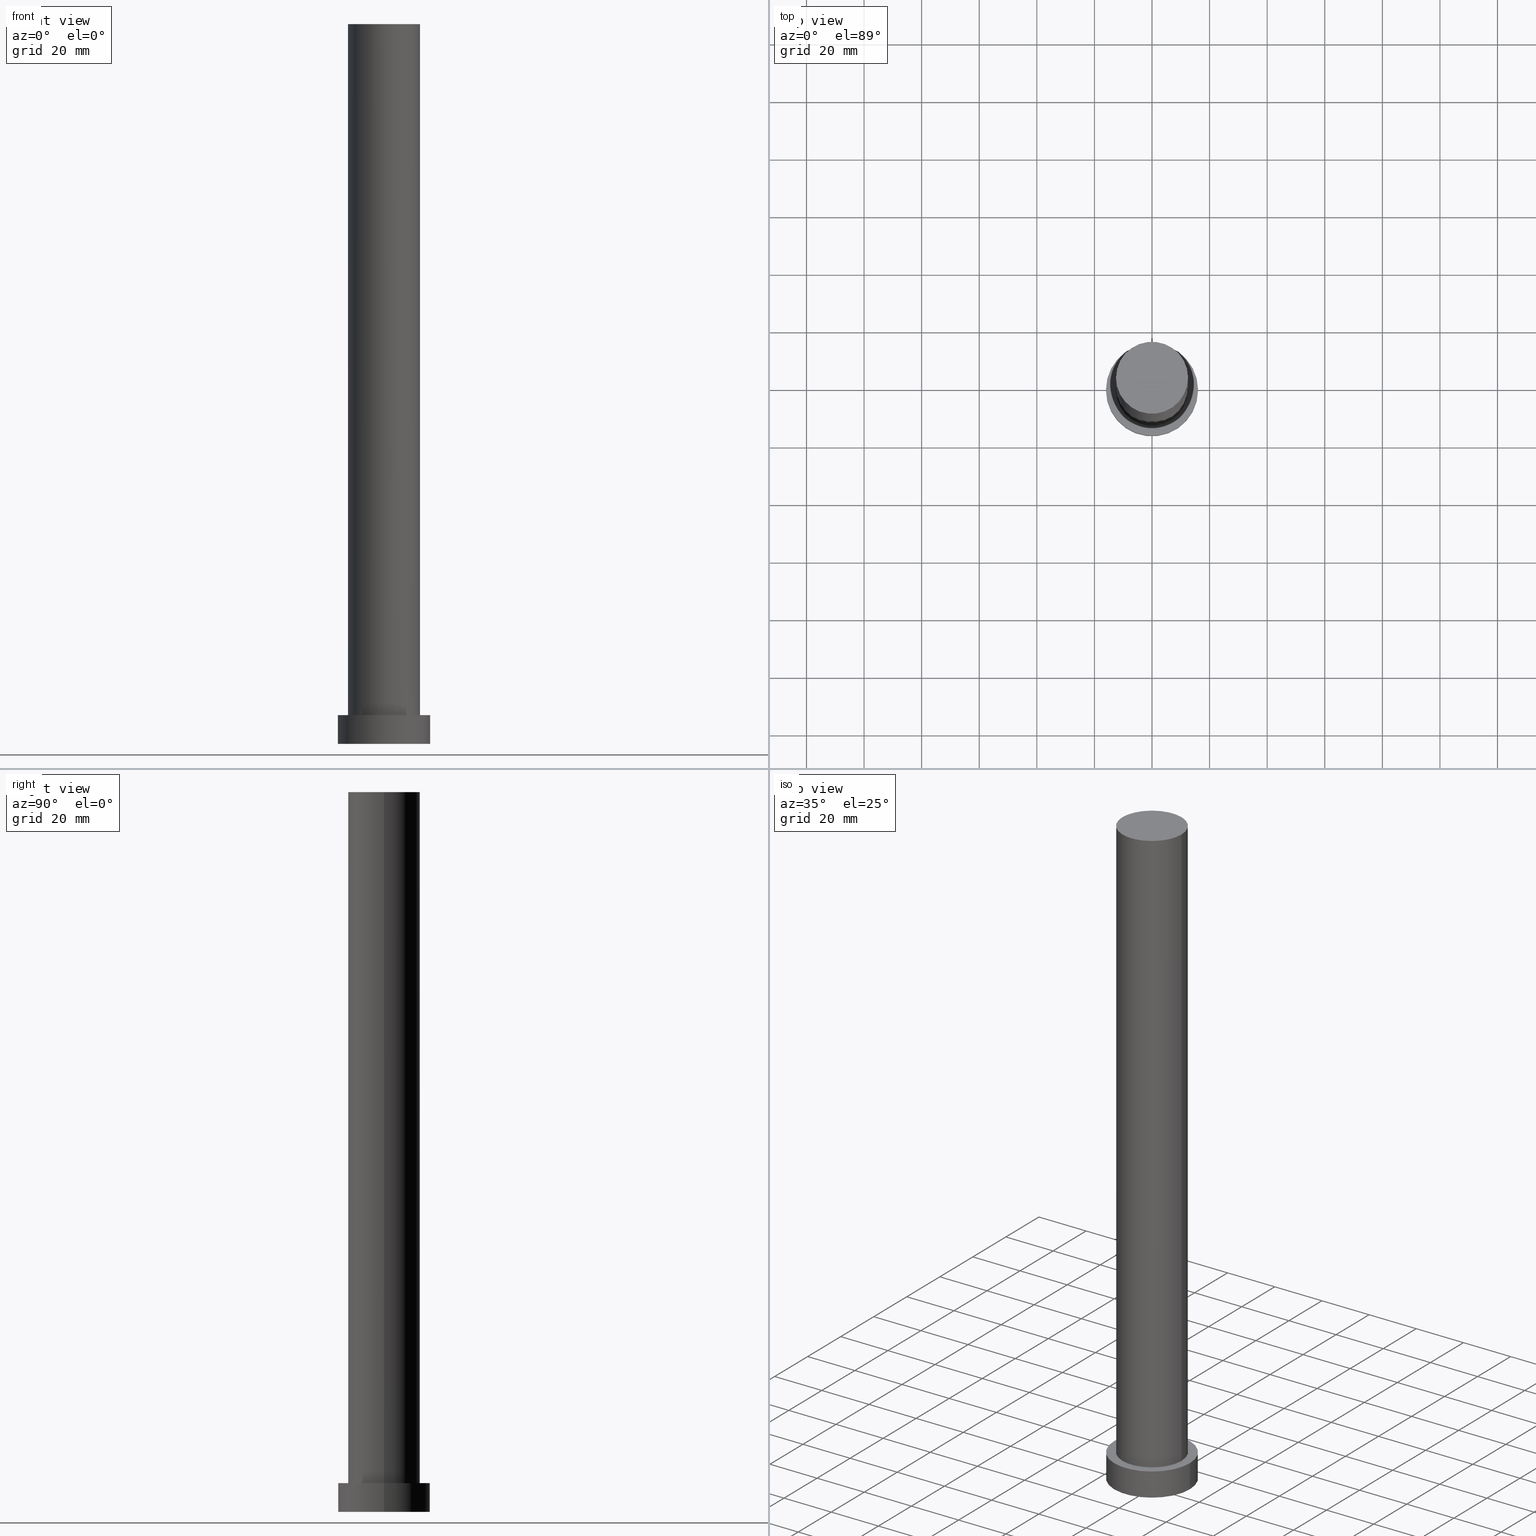
[diagram: canonical four-view strip — front | top / right | iso, engineering-drawing reading convention]
A machine part, canonical four-view strip (front | top / right | iso — engineering-drawing reading convention). The complete STEP part file that produces these views, byte-faithful:
ISO-10303-21;
HEADER;
FILE_DESCRIPTION (( 'STEP AP203' ),
    '1' );
FILE_NAME ('3a8e.STEP',
    '2023-02-13T07:32:16',
    ( '' ),
    ( '' ),
    'SwSTEP 2.0',
    'SolidWorks 2019',
    '' );
FILE_SCHEMA (( 'CONFIG_CONTROL_DESIGN' ));
ENDSEC;

DATA;
#1 = CARTESIAN_POINT ( 'NONE',  ( 0.000000000000000000, 0.000000000000000000, 10.00000000000000000 ) ) ;
#2 = PERSON_AND_ORGANIZATION ( #83, #182 ) ;
#3 = APPROVAL ( #39, 'NEUR�EN�' ) ;
#4 = CARTESIAN_POINT ( 'NONE',  ( 0.000000000000000000, 0.000000000000000000, 10.00000000000000000 ) ) ;
#5 = CARTESIAN_POINT ( 'NONE',  ( 0.000000000000000000, 0.000000000000000000, 10.00000000000000000 ) ) ;
#6 =( NAMED_UNIT ( * ) PLANE_ANGLE_UNIT ( ) SI_UNIT ( $, .RADIAN. ) );
#7 = EDGE_LOOP ( 'NONE', ( #219, #145, #225, #142 ) ) ;
#8 = ORIENTED_EDGE ( 'NONE', *, *, #68, .F. ) ;
#9 = DIRECTION ( 'NONE',  ( 1.000000000000000000, 0.000000000000000000, -0.000000000000000000 ) ) ;
#10 = ORIENTED_EDGE ( 'NONE', *, *, #221, .F. ) ;
#11 = DIRECTION ( 'NONE',  ( -0.000000000000000000, -0.000000000000000000, -1.000000000000000000 ) ) ;
#12 = DIRECTION ( 'NONE',  ( 1.000000000000000000, 0.000000000000000000, 0.000000000000000000 ) ) ;
#13 = CARTESIAN_POINT ( 'NONE',  ( 0.000000000000000000, 0.000000000000000000, 250.0000000000000000 ) ) ;
#14 = SHAPE_DEFINITION_REPRESENTATION ( #32, #188 ) ;
#15 = DIRECTION ( 'NONE',  ( -0.000000000000000000, -0.000000000000000000, -1.000000000000000000 ) ) ;
#16 = VECTOR ( 'NONE', #70, 1000.000000000000000 ) ;
#17 = APPROVAL_ROLE ( '' ) ;
#18 = AXIS2_PLACEMENT_3D ( 'NONE', #243, #25, #155 ) ;
#19 = AXIS2_PLACEMENT_3D ( 'NONE', #184, #11, #249 ) ;
#20 = PLANE ( 'NONE',  #26 ) ;
#21 = DIRECTION ( 'NONE',  ( 1.000000000000000000, 0.000000000000000000, 0.000000000000000000 ) ) ;
#22 = AXIS2_PLACEMENT_3D ( 'NONE', #241, #59, #179 ) ;
#23 = APPLICATION_PROTOCOL_DEFINITION ( 'international standard', 'config_control_design', 1994, #170 ) ;
#24 = EDGE_CURVE ( 'NONE', #33, #47, #69, .T. ) ;
#25 = DIRECTION ( 'NONE',  ( 0.000000000000000000, 0.000000000000000000, 1.000000000000000000 ) ) ;
#26 = AXIS2_PLACEMENT_3D ( 'NONE', #217, #63, #9 ) ;
#27 = DIRECTION ( 'NONE',  ( 0.000000000000000000, 0.000000000000000000, 1.000000000000000000 ) ) ;
#28 = AXIS2_PLACEMENT_3D ( 'NONE', #122, #27, #12 ) ;
#29 = PLANE ( 'NONE',  #169 ) ;
#30 = EDGE_LOOP ( 'NONE', ( #81, #44, #65, #181 ) ) ;
#31 = FACE_OUTER_BOUND ( 'NONE', #125, .T. ) ;
#32 = PRODUCT_DEFINITION_SHAPE ( 'NONE', 'NONE',  #174 ) ;
#33 = VERTEX_POINT ( 'NONE', #64 ) ;
#34 = ADVANCED_FACE ( 'NONE', ( #222 ), #29, .F. ) ;
#35 = CIRCLE ( 'NONE', #107, 16.00000000000000000 ) ;
#36 = DATE_TIME_ROLE ( 'classification_date' ) ;
#37 = DIRECTION ( 'NONE',  ( 1.000000000000000000, 0.000000000000000000, 0.000000000000000000 ) ) ;
#38 = FACE_OUTER_BOUND ( 'NONE', #163, .T. ) ;
#39 = APPROVAL_STATUS ( 'not_yet_approved' ) ;
#40 = EDGE_CURVE ( 'NONE', #177, #47, #43, .T. ) ;
#41 = CARTESIAN_POINT ( 'NONE',  ( 0.000000000000000000, 0.000000000000000000, 10.00000000000000000 ) ) ;
#42 = VERTEX_POINT ( 'NONE', #198 ) ;
#43 = LINE ( 'NONE', #128, #55 ) ;
#44 = ORIENTED_EDGE ( 'NONE', *, *, #40, .T. ) ;
#45 = ORIENTED_EDGE ( 'NONE', *, *, #68, .T. ) ;
#46 = ADVANCED_FACE ( 'NONE', ( #108, #31 ), #126, .T. ) ;
#47 = VERTEX_POINT ( 'NONE', #141 ) ;
#48 = DIRECTION ( 'NONE',  ( 0.000000000000000000, 0.000000000000000000, 1.000000000000000000 ) ) ;
#49 = CC_DESIGN_APPROVAL ( #3, ( #174 ) ) ;
#50 = ORIENTED_EDGE ( 'NONE', *, *, #240, .T. ) ;
#51 = PERSON_AND_ORGANIZATION ( #83, #182 ) ;
#52 = CARTESIAN_POINT ( 'NONE',  ( -16.00000000000000000, 0.000000000000000000, 10.00000000000000000 ) ) ;
#53 = DIRECTION ( 'NONE',  ( 1.000000000000000000, 0.000000000000000000, 0.000000000000000000 ) ) ;
#54 = CARTESIAN_POINT ( 'NONE',  ( 0.000000000000000000, 0.000000000000000000, 250.0000000000000000 ) ) ;
#55 = VECTOR ( 'NONE', #102, 1000.000000000000000 ) ;
#56 = EDGE_CURVE ( 'NONE', #177, #158, #236, .T. ) ;
#57 = DATE_AND_TIME ( #237, #85 ) ;
#58 = LOCAL_TIME ( 8, 32, 16.00000000000000000, #208 ) ;
#59 = DIRECTION ( 'NONE',  ( 0.000000000000000000, 0.000000000000000000, 1.000000000000000000 ) ) ;
#60 = DIRECTION ( 'NONE',  ( 0.000000000000000000, 0.000000000000000000, 1.000000000000000000 ) ) ;
#61 = ADVANCED_FACE ( 'NONE', ( #98 ), #124, .T. ) ;
#62 = EDGE_LOOP ( 'NONE', ( #220, #248 ) ) ;
#63 = DIRECTION ( 'NONE',  ( 0.000000000000000000, 0.000000000000000000, 1.000000000000000000 ) ) ;
#64 = CARTESIAN_POINT ( 'NONE',  ( -16.00000000000000000, 0.000000000000000000, 0.000000000000000000 ) ) ;
#65 = ORIENTED_EDGE ( 'NONE', *, *, #183, .T. ) ;
#66 = LINE ( 'NONE', #148, #110 ) ;
#67 = LOCAL_TIME ( 8, 32, 16.00000000000000000, #175 ) ;
#68 = EDGE_CURVE ( 'NONE', #206, #86, #144, .T. ) ;
#69 = CIRCLE ( 'NONE', #28, 16.00000000000000000 ) ;
#70 = DIRECTION ( 'NONE',  ( -0.000000000000000000, -0.000000000000000000, -1.000000000000000000 ) ) ;
#71 = DATE_AND_TIME ( #255, #58 ) ;
#72 = CARTESIAN_POINT ( 'NONE',  ( -12.50000000000000000, 0.000000000000000000, 250.0000000000000000 ) ) ;
#73 = APPROVAL_STATUS ( 'not_yet_approved' ) ;
#74 = EDGE_CURVE ( 'NONE', #158, #33, #75, .T. ) ;
#75 = LINE ( 'NONE', #212, #213 ) ;
#76 = CC_DESIGN_APPROVAL ( #252, ( #187 ) ) ;
#77 = CC_DESIGN_PERSON_AND_ORGANIZATION_ASSIGNMENT ( #231, #111, ( #96 ) ) ;
#78 = APPROVAL_ROLE ( '' ) ;
#79 = DIRECTION ( 'NONE',  ( -0.000000000000000000, -0.000000000000000000, -1.000000000000000000 ) ) ;
#80 = DIRECTION ( 'NONE',  ( -0.000000000000000000, -0.000000000000000000, -1.000000000000000000 ) ) ;
#81 = ORIENTED_EDGE ( 'NONE', *, *, #56, .F. ) ;
#82 = APPROVAL_STATUS ( 'not_yet_approved' ) ;
#83 = PERSON ( 'NEUR�EN�', 'NEUR�EN�', 'NEUR�EN�', ('NEUR�EN�'), ('NEUR�EN�'), ('NEUR�EN�') ) ;
#84 = CC_DESIGN_PERSON_AND_ORGANIZATION_ASSIGNMENT ( #214, #118, ( #174 ) ) ;
#85 = LOCAL_TIME ( 8, 32, 16.00000000000000000, #152 ) ;
#86 = VERTEX_POINT ( 'NONE', #194 ) ;
#87 = AXIS2_PLACEMENT_3D ( 'NONE', #5, #80, #201 ) ;
#88 = DIRECTION ( 'NONE',  ( 1.000000000000000000, 0.000000000000000000, 0.000000000000000000 ) ) ;
#89 = ORIENTED_EDGE ( 'NONE', *, *, #103, .F. ) ;
#90 = APPROVAL_PERSON_ORGANIZATION ( #204, #252, #180 ) ;
#91 = PERSON_AND_ORGANIZATION ( #83, #182 ) ;
#92 = AXIS2_PLACEMENT_3D ( 'NONE', #41, #121, #196 ) ;
#93 = PERSON_AND_ORGANIZATION_ROLE ( 'design_supplier' ) ;
#94 = APPLICATION_PROTOCOL_DEFINITION ( 'international standard', 'config_control_design', 1994, #153 ) ;
#95 = DIRECTION ( 'NONE',  ( 1.000000000000000000, 0.000000000000000000, 0.000000000000000000 ) ) ;
#96 = SECURITY_CLASSIFICATION ( '', '', #253 ) ;
#97 = CARTESIAN_POINT ( 'NONE',  ( 0.000000000000000000, 0.000000000000000000, 250.0000000000000000 ) ) ;
#98 = FACE_OUTER_BOUND ( 'NONE', #30, .T. ) ;
#99 = CARTESIAN_POINT ( 'NONE',  ( 0.000000000000000000, 0.000000000000000000, 10.00000000000000000 ) ) ;
#100 = ORIENTED_EDGE ( 'NONE', *, *, #240, .F. ) ;
#101 = DESIGN_CONTEXT ( 'detailed design', #170, 'design' ) ;
#102 = DIRECTION ( 'NONE',  ( -0.000000000000000000, -0.000000000000000000, -1.000000000000000000 ) ) ;
#103 = EDGE_CURVE ( 'NONE', #159, #42, #138, .T. ) ;
#104 = EDGE_LOOP ( 'NONE', ( #10, #89, #130, #45 ) ) ;
#105 = CARTESIAN_POINT ( 'NONE',  ( 0.000000000000000000, 0.000000000000000000, 0.000000000000000000 ) ) ;
#106 = ORIENTED_EDGE ( 'NONE', *, *, #24, .T. ) ;
#107 = AXIS2_PLACEMENT_3D ( 'NONE', #99, #173, #53 ) ;
#108 = FACE_BOUND ( 'NONE', #200, .T. ) ;
#109 = FACE_OUTER_BOUND ( 'NONE', #7, .T. ) ;
#110 = VECTOR ( 'NONE', #131, 1000.000000000000000 ) ;
#111 = PERSON_AND_ORGANIZATION_ROLE ( 'classification_officer' ) ;
#112 = DIRECTION ( 'NONE',  ( -1.000000000000000000, 0.000000000000000000, 0.000000000000000000 ) ) ;
#113 = CALENDAR_DATE ( 2023, 13, 2 ) ;
#114 = CC_DESIGN_DATE_AND_TIME_ASSIGNMENT ( #71, #36, ( #96 ) ) ;
#115 = FACE_OUTER_BOUND ( 'NONE', #146, .T. ) ;
#116 = CYLINDRICAL_SURFACE ( 'NONE', #147, 16.00000000000000000 ) ;
#117 = PERSON_AND_ORGANIZATION ( #83, #182 ) ;
#118 = PERSON_AND_ORGANIZATION_ROLE ( 'creator' ) ;
#119 =( GEOMETRIC_REPRESENTATION_CONTEXT ( 3 ) GLOBAL_UNCERTAINTY_ASSIGNED_CONTEXT ( ( #140 ) ) GLOBAL_UNIT_ASSIGNED_CONTEXT ( ( #233, #6, #151 ) ) REPRESENTATION_CONTEXT ( 'NONE', 'WORKASPACE' ) );
#120 = CC_DESIGN_DATE_AND_TIME_ASSIGNMENT ( #216, #162, ( #174 ) ) ;
#121 = DIRECTION ( 'NONE',  ( 0.000000000000000000, 0.000000000000000000, 1.000000000000000000 ) ) ;
#122 = CARTESIAN_POINT ( 'NONE',  ( 0.000000000000000000, 0.000000000000000000, 0.000000000000000000 ) ) ;
#123 = CC_DESIGN_PERSON_AND_ORGANIZATION_ASSIGNMENT ( #117, #210, ( #164 ) ) ;
#124 = CYLINDRICAL_SURFACE ( 'NONE', #87, 16.00000000000000000 ) ;
#125 = EDGE_LOOP ( 'NONE', ( #50, #157 ) ) ;
#126 = PLANE ( 'NONE',  #92 ) ;
#127 = CALENDAR_DATE ( 2023, 13, 2 ) ;
#128 = CARTESIAN_POINT ( 'NONE',  ( 16.00000000000000000, 1.959434878635765131E-15, 10.00000000000000000 ) ) ;
#129 = CC_DESIGN_APPROVAL ( #227, ( #96 ) ) ;
#130 = ORIENTED_EDGE ( 'NONE', *, *, #168, .T. ) ;
#131 = DIRECTION ( 'NONE',  ( -0.000000000000000000, -0.000000000000000000, -1.000000000000000000 ) ) ;
#132 = COORDINATED_UNIVERSAL_TIME_OFFSET ( 1, 0, .AHEAD. ) ;
#133 = EDGE_CURVE ( 'NONE', #42, #159, #239, .T. ) ;
#134 = CYLINDRICAL_SURFACE ( 'NONE', #19, 12.50000000000000000 ) ;
#135 = DIRECTION ( 'NONE',  ( -0.000000000000000000, -0.000000000000000000, -1.000000000000000000 ) ) ;
#136 = MECHANICAL_CONTEXT ( 'NONE', #153, 'mechanical' ) ;
#137 = APPROVAL_DATE_TIME ( #57, #3 ) ;
#138 = CIRCLE ( 'NONE', #143, 12.50000000000000000 ) ;
#139 = AXIS2_PLACEMENT_3D ( 'NONE', #193, #195, #21 ) ;
#140 = UNCERTAINTY_MEASURE_WITH_UNIT (LENGTH_MEASURE( 1.000000000000000082E-05 ), #233, 'distance_accuracy_value', 'NONE');
#141 = CARTESIAN_POINT ( 'NONE',  ( 16.00000000000000000, 1.959434878635765131E-15, 0.000000000000000000 ) ) ;
#142 = ORIENTED_EDGE ( 'NONE', *, *, #168, .F. ) ;
#143 = AXIS2_PLACEMENT_3D ( 'NONE', #54, #209, #95 ) ;
#144 = CIRCLE ( 'NONE', #22, 12.50000000000000000 ) ;
#145 = ORIENTED_EDGE ( 'NONE', *, *, #221, .T. ) ;
#146 = EDGE_LOOP ( 'NONE', ( #178, #202 ) ) ;
#147 = AXIS2_PLACEMENT_3D ( 'NONE', #4, #79, #112 ) ;
#148 = CARTESIAN_POINT ( 'NONE',  ( 12.50000000000000000, 1.530808498934191521E-15, 250.0000000000000000 ) ) ;
#149 = CLOSED_SHELL ( 'NONE', ( #211, #61, #232, #46, #34, #190, #156 ) ) ;
#150 = DATE_AND_TIME ( #127, #199 ) ;
#151 =( NAMED_UNIT ( * ) SI_UNIT ( $, .STERADIAN. ) SOLID_ANGLE_UNIT ( ) );
#152 = COORDINATED_UNIVERSAL_TIME_OFFSET ( 1, 0, .AHEAD. ) ;
#153 = APPLICATION_CONTEXT ( 'configuration controlled 3d designs of mechanical parts and assemblies' ) ;
#154 = CC_DESIGN_SECURITY_CLASSIFICATION ( #96, ( #187 ) ) ;
#155 = DIRECTION ( 'NONE',  ( 1.000000000000000000, 0.000000000000000000, 0.000000000000000000 ) ) ;
#156 = ADVANCED_FACE ( 'NONE', ( #115 ), #20, .T. ) ;
#157 = ORIENTED_EDGE ( 'NONE', *, *, #56, .T. ) ;
#158 = VERTEX_POINT ( 'NONE', #52 ) ;
#159 = VERTEX_POINT ( 'NONE', #186 ) ;
#160 = LOCAL_TIME ( 8, 32, 16.00000000000000000, #132 ) ;
#161 = CARTESIAN_POINT ( 'NONE',  ( 0.000000000000000000, 0.000000000000000000, 0.000000000000000000 ) ) ;
#162 = DATE_TIME_ROLE ( 'creation_date' ) ;
#163 = EDGE_LOOP ( 'NONE', ( #244, #100, #242, #106 ) ) ;
#164 = PRODUCT ( '3a8e', '3a8e', '', ( #136 ) ) ;
#165 = FACE_OUTER_BOUND ( 'NONE', #104, .T. ) ;
#166 = PERSON_AND_ORGANIZATION ( #83, #182 ) ;
#167 = AXIS2_PLACEMENT_3D ( 'NONE', #161, #48, #88 ) ;
#168 = EDGE_CURVE ( 'NONE', #159, #206, #251, .T. ) ;
#169 = AXIS2_PLACEMENT_3D ( 'NONE', #105, #218, #224 ) ;
#170 = APPLICATION_CONTEXT ( 'configuration controlled 3d designs of mechanical parts and assemblies' ) ;
#171 = CIRCLE ( 'NONE', #167, 16.00000000000000000 ) ;
#172 = PERSON_AND_ORGANIZATION_ROLE ( 'creator' ) ;
#173 = DIRECTION ( 'NONE',  ( 0.000000000000000000, 0.000000000000000000, 1.000000000000000000 ) ) ;
#174 = PRODUCT_DEFINITION ( 'NEZN�M�', '', #187, #101 ) ;
#175 = COORDINATED_UNIVERSAL_TIME_OFFSET ( 1, 0, .AHEAD. ) ;
#176 = AXIS2_PLACEMENT_3D ( 'NONE', #1, #60, #189 ) ;
#177 = VERTEX_POINT ( 'NONE', #228 ) ;
#178 = ORIENTED_EDGE ( 'NONE', *, *, #103, .T. ) ;
#179 = DIRECTION ( 'NONE',  ( 1.000000000000000000, 0.000000000000000000, 0.000000000000000000 ) ) ;
#180 = APPROVAL_ROLE ( '' ) ;
#181 = ORIENTED_EDGE ( 'NONE', *, *, #74, .F. ) ;
#182 = ORGANIZATION ( 'NEUR�EN�', 'NEUR�EN�', '' ) ;
#183 = EDGE_CURVE ( 'NONE', #47, #33, #171, .T. ) ;
#184 = CARTESIAN_POINT ( 'NONE',  ( 0.000000000000000000, 0.000000000000000000, 250.0000000000000000 ) ) ;
#185 = CYLINDRICAL_SURFACE ( 'NONE', #215, 12.50000000000000000 ) ;
#186 = CARTESIAN_POINT ( 'NONE',  ( -12.50000000000000000, 0.000000000000000000, 250.0000000000000000 ) ) ;
#187 = PRODUCT_DEFINITION_FORMATION_WITH_SPECIFIED_SOURCE ( 'LIBOVOLN�', '', #164, .NOT_KNOWN. ) ;
#188 = ADVANCED_BREP_SHAPE_REPRESENTATION ( '3a8e', ( #230, #139 ), #119 ) ;
#189 = DIRECTION ( 'NONE',  ( 1.000000000000000000, 0.000000000000000000, 0.000000000000000000 ) ) ;
#190 = ADVANCED_FACE ( 'NONE', ( #165 ), #134, .T. ) ;
#191 = APPROVAL_PERSON_ORGANIZATION ( #166, #227, #17 ) ;
#192 = DIRECTION ( 'NONE',  ( 0.000000000000000000, 0.000000000000000000, 1.000000000000000000 ) ) ;
#193 = CARTESIAN_POINT ( 'NONE',  ( 0.000000000000000000, 0.000000000000000000, 0.000000000000000000 ) ) ;
#194 = CARTESIAN_POINT ( 'NONE',  ( 12.50000000000000000, 1.530808498934191521E-15, 10.00000000000000000 ) ) ;
#195 = DIRECTION ( 'NONE',  ( 0.000000000000000000, 0.000000000000000000, 1.000000000000000000 ) ) ;
#196 = DIRECTION ( 'NONE',  ( 1.000000000000000000, 0.000000000000000000, -0.000000000000000000 ) ) ;
#197 = PRODUCT_RELATED_PRODUCT_CATEGORY ( 'detail', '', ( #164 ) ) ;
#198 = CARTESIAN_POINT ( 'NONE',  ( 12.50000000000000000, 1.530808498934191521E-15, 250.0000000000000000 ) ) ;
#199 = LOCAL_TIME ( 8, 32, 16.00000000000000000, #247 ) ;
#200 = EDGE_LOOP ( 'NONE', ( #8, #223 ) ) ;
#201 = DIRECTION ( 'NONE',  ( -1.000000000000000000, 0.000000000000000000, 0.000000000000000000 ) ) ;
#202 = ORIENTED_EDGE ( 'NONE', *, *, #133, .T. ) ;
#203 = CC_DESIGN_PERSON_AND_ORGANIZATION_ASSIGNMENT ( #91, #93, ( #187 ) ) ;
#204 = PERSON_AND_ORGANIZATION ( #83, #182 ) ;
#205 = CARTESIAN_POINT ( 'NONE',  ( -12.50000000000000000, 0.000000000000000000, 10.00000000000000000 ) ) ;
#206 = VERTEX_POINT ( 'NONE', #205 ) ;
#207 = DATE_AND_TIME ( #113, #160 ) ;
#208 = COORDINATED_UNIVERSAL_TIME_OFFSET ( 1, 0, .AHEAD. ) ;
#209 = DIRECTION ( 'NONE',  ( 0.000000000000000000, 0.000000000000000000, 1.000000000000000000 ) ) ;
#210 = PERSON_AND_ORGANIZATION_ROLE ( 'design_owner' ) ;
#211 = ADVANCED_FACE ( 'NONE', ( #109 ), #185, .T. ) ;
#212 = CARTESIAN_POINT ( 'NONE',  ( -16.00000000000000000, 0.000000000000000000, 10.00000000000000000 ) ) ;
#213 = VECTOR ( 'NONE', #135, 1000.000000000000000 ) ;
#214 = PERSON_AND_ORGANIZATION ( #83, #182 ) ;
#215 = AXIS2_PLACEMENT_3D ( 'NONE', #13, #15, #250 ) ;
#216 = DATE_AND_TIME ( #238, #67 ) ;
#217 = CARTESIAN_POINT ( 'NONE',  ( 0.000000000000000000, 0.000000000000000000, 250.0000000000000000 ) ) ;
#218 = DIRECTION ( 'NONE',  ( 0.000000000000000000, 0.000000000000000000, 1.000000000000000000 ) ) ;
#219 = ORIENTED_EDGE ( 'NONE', *, *, #133, .F. ) ;
#220 = ORIENTED_EDGE ( 'NONE', *, *, #24, .F. ) ;
#221 = EDGE_CURVE ( 'NONE', #42, #86, #66, .T. ) ;
#222 = FACE_OUTER_BOUND ( 'NONE', #62, .T. ) ;
#223 = ORIENTED_EDGE ( 'NONE', *, *, #245, .F. ) ;
#224 = DIRECTION ( 'NONE',  ( 1.000000000000000000, 0.000000000000000000, -0.000000000000000000 ) ) ;
#225 = ORIENTED_EDGE ( 'NONE', *, *, #245, .T. ) ;
#226 = APPROVAL_DATE_TIME ( #150, #252 ) ;
#227 = APPROVAL ( #73, 'NEUR�EN�' ) ;
#228 = CARTESIAN_POINT ( 'NONE',  ( 16.00000000000000000, 1.959434878635765131E-15, 10.00000000000000000 ) ) ;
#229 = APPROVAL_DATE_TIME ( #207, #227 ) ;
#230 = MANIFOLD_SOLID_BREP ( 'P�idat vysunut�m3', #149 ) ;
#231 = PERSON_AND_ORGANIZATION ( #83, #182 ) ;
#232 = ADVANCED_FACE ( 'NONE', ( #38 ), #116, .T. ) ;
#233 =( LENGTH_UNIT ( ) NAMED_UNIT ( * ) SI_UNIT ( .MILLI., .METRE. ) );
#234 = CC_DESIGN_PERSON_AND_ORGANIZATION_ASSIGNMENT ( #51, #172, ( #187 ) ) ;
#235 = AXIS2_PLACEMENT_3D ( 'NONE', #97, #192, #37 ) ;
#236 = CIRCLE ( 'NONE', #18, 16.00000000000000000 ) ;
#237 = CALENDAR_DATE ( 2023, 13, 2 ) ;
#238 = CALENDAR_DATE ( 2023, 13, 2 ) ;
#239 = CIRCLE ( 'NONE', #235, 12.50000000000000000 ) ;
#240 = EDGE_CURVE ( 'NONE', #158, #177, #35, .T. ) ;
#241 = CARTESIAN_POINT ( 'NONE',  ( 0.000000000000000000, 0.000000000000000000, 10.00000000000000000 ) ) ;
#242 = ORIENTED_EDGE ( 'NONE', *, *, #74, .T. ) ;
#243 = CARTESIAN_POINT ( 'NONE',  ( 0.000000000000000000, 0.000000000000000000, 10.00000000000000000 ) ) ;
#244 = ORIENTED_EDGE ( 'NONE', *, *, #40, .F. ) ;
#245 = EDGE_CURVE ( 'NONE', #86, #206, #254, .T. ) ;
#246 = APPROVAL_PERSON_ORGANIZATION ( #2, #3, #78 ) ;
#247 = COORDINATED_UNIVERSAL_TIME_OFFSET ( 1, 0, .AHEAD. ) ;
#248 = ORIENTED_EDGE ( 'NONE', *, *, #183, .F. ) ;
#249 = DIRECTION ( 'NONE',  ( -1.000000000000000000, 0.000000000000000000, 0.000000000000000000 ) ) ;
#250 = DIRECTION ( 'NONE',  ( -1.000000000000000000, 0.000000000000000000, 0.000000000000000000 ) ) ;
#251 = LINE ( 'NONE', #72, #16 ) ;
#252 = APPROVAL ( #82, 'NEUR�EN�' ) ;
#253 = SECURITY_CLASSIFICATION_LEVEL ( 'unclassified' ) ;
#254 = CIRCLE ( 'NONE', #176, 12.50000000000000000 ) ;
#255 = CALENDAR_DATE ( 2023, 13, 2 ) ;
ENDSEC;
END-ISO-10303-21;
